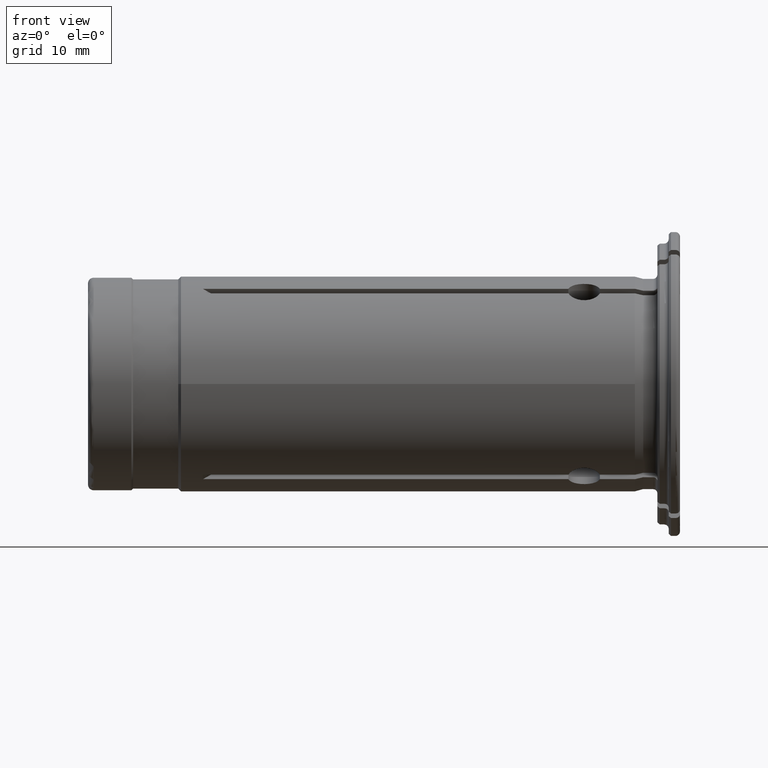
[diagram: clean part render]
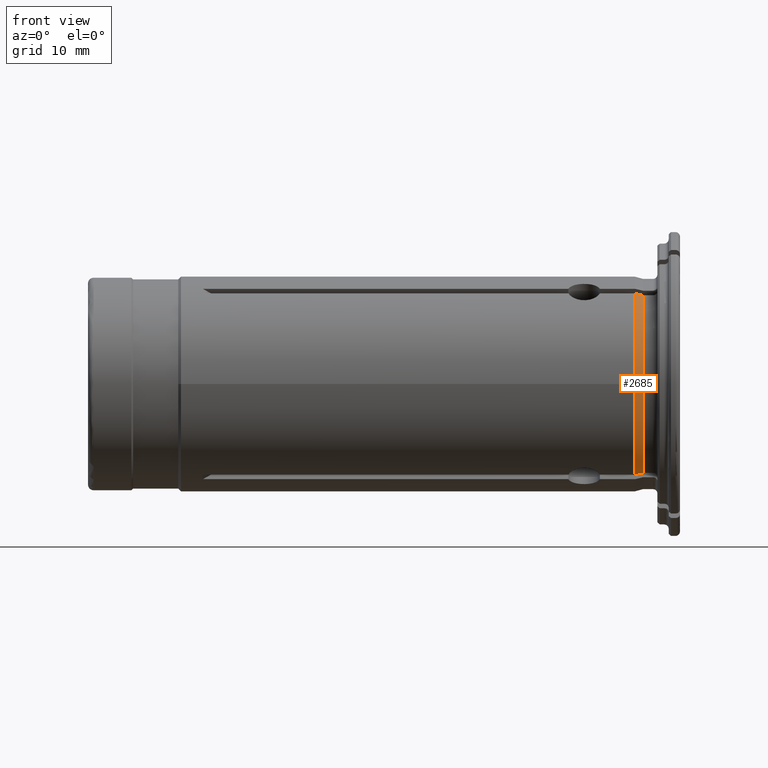
[diagram: same view with one face highlighted and labeled with its STEP entity id]
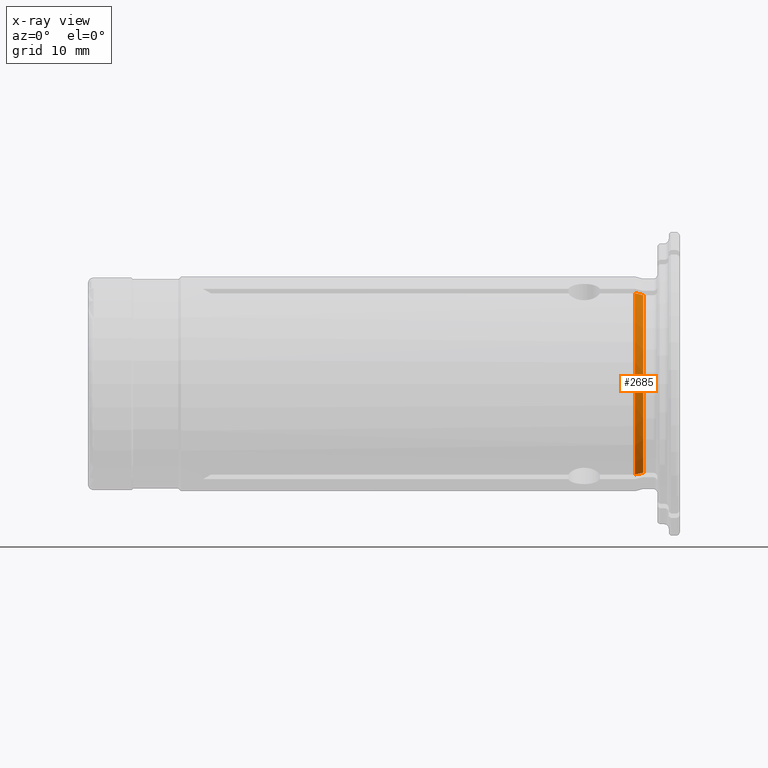
[diagram: x-ray of the same camera — body ghosted, the highlighted face saturated]
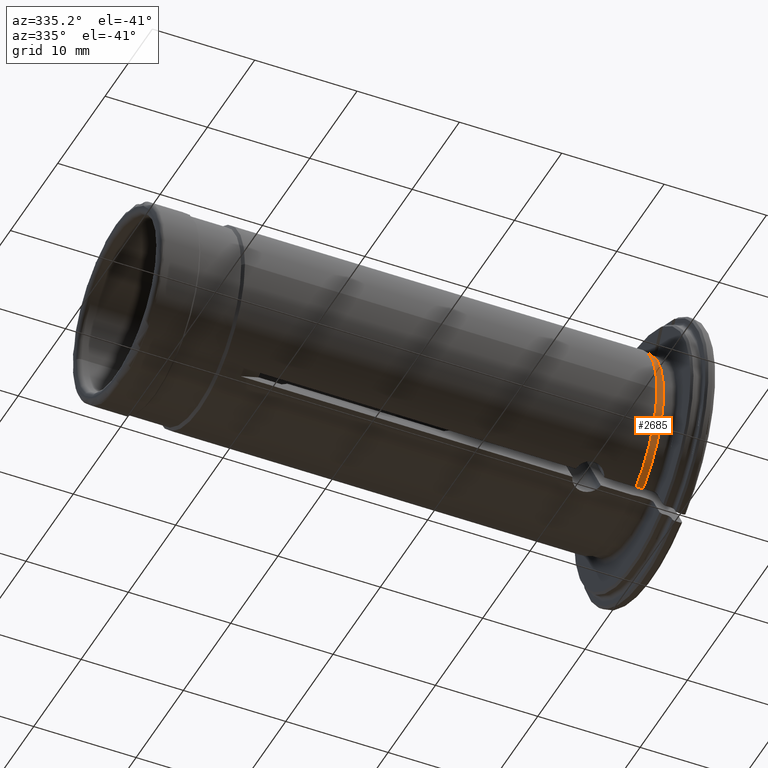
[diagram: same view with one face highlighted and labeled with its STEP entity id]
A machine part, front view. The second image highlights one B-rep face of the part: STEP entity #2685.
The next image is the same camera in x-ray: the body ghosted, the highlighted face saturated — about 0% of this face is hidden behind the body in this view.
A second angle (auxiliary view) of the same face is appended — the face is thin or edge-on in the first view.
In plain terms, the highlighted conical surface has half-angle 15 deg.
Its self-contained STEP definition (entity closure, byte-faithful):
#35=CARTESIAN_POINT('',(-2.E0,0.E0,0.E0));
#36=DIRECTION('',(1.E0,0.E0,0.E0));
#37=DIRECTION('',(0.E0,-5.359274365678E-1,8.442640479932E-1));
#38=AXIS2_PLACEMENT_3D('',#35,#36,#37);
#988=CARTESIAN_POINT('',(-1.253589838486E0,0.E0,0.E0));
#989=DIRECTION('',(-1.E0,0.E0,0.E0));
#990=DIRECTION('',(0.E0,-5.366883262466E-1,-8.437805641697E-1));
#991=AXIS2_PLACEMENT_3D('',#988,#989,#990);
#1024=CARTESIAN_POINT('',(-1.253589838486E0,-5.004618642250E0,
-7.868253760883E0));
#1025=CARTESIAN_POINT('',(-1.336359112475E0,-5.015717838379E0,
-7.887478132501E0));
#1026=CARTESIAN_POINT('',(-1.502007795280E0,-5.037930853520E0,
-7.925952203316E0));
#1027=CARTESIAN_POINT('',(-1.750811866524E0,-5.071294338592E0,
-7.983739454577E0));
#1028=CARTESIAN_POINT('',(-1.916900650273E0,-5.093565801449E0,
-8.022314759805E0));
#1029=CARTESIAN_POINT('',(-2.E0,-5.104708833308E0,-8.041615057135E0));
#1031=CARTESIAN_POINT('',(-2.E0,-5.104708833308E0,8.041615057135E0));
#1032=CARTESIAN_POINT('',(-1.916901231526E0,-5.093565879391E0,
8.022314894805E0));
#1033=CARTESIAN_POINT('',(-1.750813222791E0,-5.071294520459E0,
7.983739769581E0));
#1034=CARTESIAN_POINT('',(-1.502009152588E0,-5.037931035531E0,
7.925952518567E0));
#1035=CARTESIAN_POINT('',(-1.336359694183E0,-5.015717916385E0,
7.887478267612E0));
#1036=CARTESIAN_POINT('',(-1.253589838486E0,-5.004618642250E0,
7.868253760883E0));
#1137=CARTESIAN_POINT('',(-2.E0,0.E0,0.E0));
#1138=DIRECTION('',(1.E0,0.E0,0.E0));
#1139=DIRECTION('',(0.E0,-1.E0,0.E0));
#1140=AXIS2_PLACEMENT_3D('',#1137,#1138,#1139);
#1597=CARTESIAN_POINT('',(-2.E0,-9.525E0,0.E0));
#1598=VERTEX_POINT('',#1597);
#1706=CARTESIAN_POINT('',(-2.E0,-5.104708833308E0,8.041615057135E0));
#1708=VERTEX_POINT('',#1706);
#1780=VERTEX_POINT('',#1036);
#1816=CARTESIAN_POINT('',(-2.E0,-5.104708833308E0,-8.041615057135E0));
#1818=VERTEX_POINT('',#1816);
#1873=VERTEX_POINT('',#1024);
#2670=CARTESIAN_POINT('',(-1.626794919243E0,0.E0,0.E0));
#2671=DIRECTION('',(-1.E0,0.E0,0.E0));
#2672=DIRECTION('',(0.E0,1.E0,0.E0));
#2673=AXIS2_PLACEMENT_3D('',#2670,#2671,#2672);
#2674=CONICAL_SURFACE('',#2673,9.425E0,1.5E1);
#2676=ORIENTED_EDGE('',*,*,#2675,.T.);
#2678=ORIENTED_EDGE('',*,*,#2677,.F.);
#2679=ORIENTED_EDGE('',*,*,#1914,.F.);
#2681=ORIENTED_EDGE('',*,*,#2680,.T.);
#2682=ORIENTED_EDGE('',*,*,#2634,.F.);
#2683=EDGE_LOOP('',(#2676,#2678,#2679,#2681,#2682));
#2684=FACE_OUTER_BOUND('',#2683,.F.);
#2685=ADVANCED_FACE('',(#2684),#2674,.T.);
#39=CIRCLE('',#38,9.525E0);
#992=CIRCLE('',#991,9.325E0);
#1030=B_SPLINE_CURVE_WITH_KNOTS('',3,(#1024,#1025,#1026,#1027,#1028,#1029),
.UNSPECIFIED.,.F.,.F.,(4,1,1,4),(0.E0,3.333333333333E-1,6.666666666667E-1,1.E0),
.UNSPECIFIED.);
#1037=B_SPLINE_CURVE_WITH_KNOTS('',3,(#1031,#1032,#1033,#1034,#1035,#1036),
.UNSPECIFIED.,.F.,.F.,(4,1,1,4),(0.E0,3.333333333333E-1,6.666666666667E-1,1.E0),
.UNSPECIFIED.);
#1141=CIRCLE('',#1140,9.525E0);
#1914=EDGE_CURVE('',#1708,#1598,#39,.T.);
#2634=EDGE_CURVE('',#1873,#1780,#992,.T.);
#2675=EDGE_CURVE('',#1873,#1818,#1030,.T.);
#2677=EDGE_CURVE('',#1598,#1818,#1141,.T.);
#2680=EDGE_CURVE('',#1708,#1780,#1037,.T.);